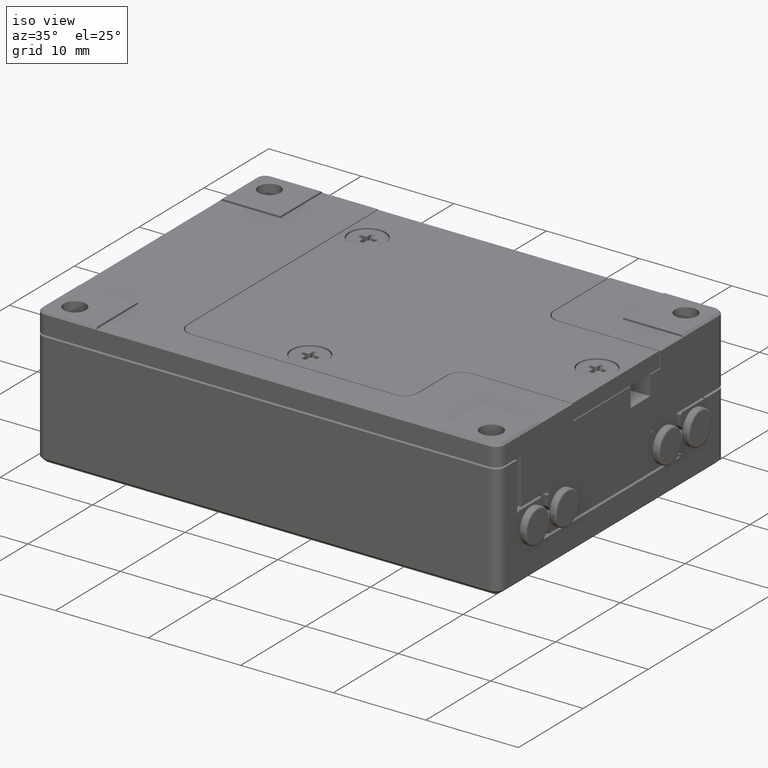
[diagram: clean part render]
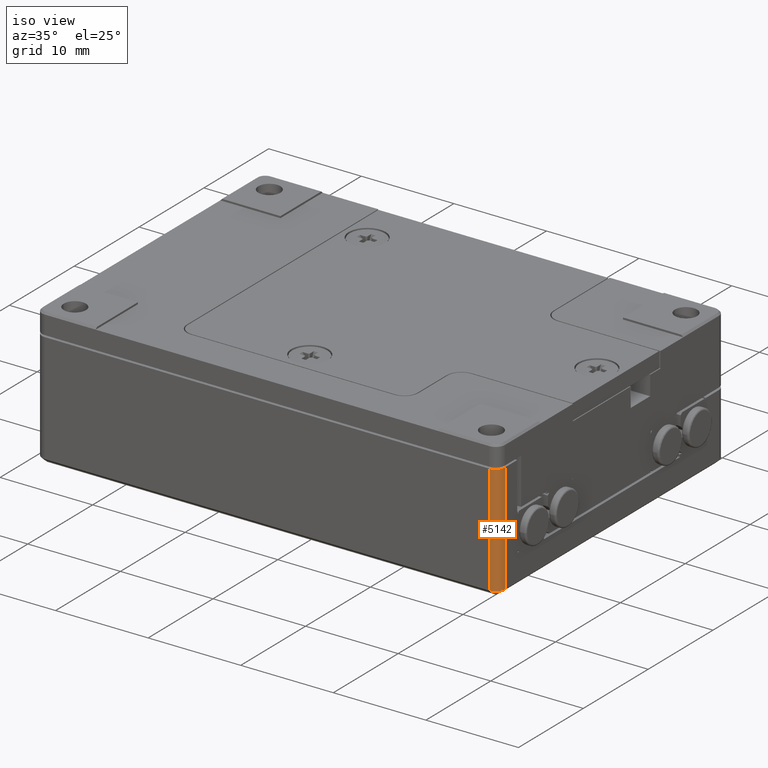
[diagram: same view with one face highlighted and labeled with its STEP entity id]
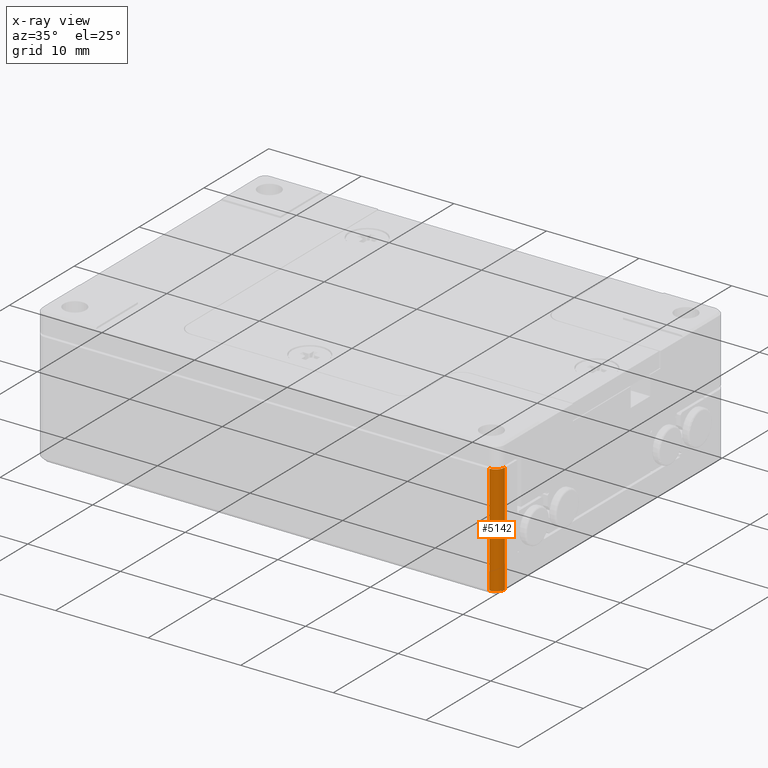
[diagram: x-ray of the same camera — body ghosted, the highlighted face saturated]
A machine part, iso view. The second image highlights one B-rep face of the part: STEP entity #5142.
The next image is the same camera in x-ray: the body ghosted, the highlighted face saturated — about 0% of this face is hidden behind the body in this view.
In plain terms, the highlighted cylindrical surface (edge-blend (fillet) strip) has radius 1 mm, axis along (-0, -0, 1).
Its self-contained STEP definition (entity closure, byte-faithful):
#118 = CARTESIAN_POINT ( 'NONE',  ( 22.62210796915164934, -9.299999999999998934, -12.81748071979434123 ) ) ;
#257 = CIRCLE ( 'NONE', #5820, 1.000000000000000888 ) ;
#642 = DIRECTION ( 'NONE',  ( 0.000000000000000000, 0.000000000000000000, -1.000000000000000000 ) ) ;
#1003 = CARTESIAN_POINT ( 'NONE',  ( 21.62210796915164934, 2.600000000000000089, -13.81748071979434123 ) ) ;
#2302 = AXIS2_PLACEMENT_3D ( 'NONE', #2814, #6345, #642 ) ;
#2409 = DIRECTION ( 'NONE',  ( 0.000000000000000000, -1.000000000000000000, 0.000000000000000000 ) ) ;
#2814 = CARTESIAN_POINT ( 'NONE',  ( 21.62210796915164934, 2.899999999999999911, -12.81748071979434123 ) ) ;
#3135 = CYLINDRICAL_SURFACE ( 'NONE', #2302, 1.000000000000000888 ) ;
#3335 = VECTOR ( 'NONE', #13438, 1000.000000000000000 ) ;
#3489 = ORIENTED_EDGE ( 'NONE', *, *, #7964, .F. ) ;
#3660 = LINE ( 'NONE', #3726, #6342 ) ;
#3726 = CARTESIAN_POINT ( 'NONE',  ( 21.62210796915164934, 2.899999999999999911, -13.81748071979434123 ) ) ;
#4701 = VERTEX_POINT ( 'NONE', #1003 ) ;
#5142 = ADVANCED_FACE ( 'NONE', ( #9053 ), #3135, .T. ) ;
#5366 = EDGE_LOOP ( 'NONE', ( #13182, #9064, #3489, #9860 ) ) ;
#5737 = VERTEX_POINT ( 'NONE', #118 ) ;
#5820 = AXIS2_PLACEMENT_3D ( 'NONE', #12831, #2409, #12763 ) ;
#6089 = CARTESIAN_POINT ( 'NONE',  ( 21.62210796915164934, -9.299999999999998934, -13.81748071979434123 ) ) ;
#6342 = VECTOR ( 'NONE', #7889, 1000.000000000000000 ) ;
#6345 = DIRECTION ( 'NONE',  ( 0.000000000000000000, -1.000000000000000000, 0.000000000000000000 ) ) ;
#6481 = CARTESIAN_POINT ( 'NONE',  ( 21.62210796915164934, -9.299999999999998934, -12.81748071979434123 ) ) ;
#6550 = VERTEX_POINT ( 'NONE', #6089 ) ;
#7030 = EDGE_CURVE ( 'NONE', #6550, #5737, #12615, .T. ) ;
#7889 = DIRECTION ( 'NONE',  ( 0.000000000000000000, -1.000000000000000000, 0.000000000000000000 ) ) ;
#7964 = EDGE_CURVE ( 'NONE', #5737, #13707, #11347, .T. ) ;
#9053 = FACE_OUTER_BOUND ( 'NONE', #5366, .T. ) ;
#9064 = ORIENTED_EDGE ( 'NONE', *, *, #12386, .T. ) ;
#9417 = EDGE_CURVE ( 'NONE', #4701, #6550, #3660, .T. ) ;
#9459 = DIRECTION ( 'NONE',  ( 0.000000000000000000, 0.000000000000000000, -1.000000000000000000 ) ) ;
#9860 = ORIENTED_EDGE ( 'NONE', *, *, #7030, .F. ) ;
#11057 = AXIS2_PLACEMENT_3D ( 'NONE', #6481, #12649, #9459 ) ;
#11290 = CARTESIAN_POINT ( 'NONE',  ( 22.62210796915164934, 2.600000000000000089, -12.81748071979434123 ) ) ;
#11347 = LINE ( 'NONE', #12328, #3335 ) ;
#12328 = CARTESIAN_POINT ( 'NONE',  ( 22.62210796915164934, 2.899999999999999911, -12.81748071979434123 ) ) ;
#12386 = EDGE_CURVE ( 'NONE', #4701, #13707, #257, .T. ) ;
#12615 = CIRCLE ( 'NONE', #11057, 1.000000000000000888 ) ;
#12649 = DIRECTION ( 'NONE',  ( 0.000000000000000000, -1.000000000000000000, 0.000000000000000000 ) ) ;
#12763 = DIRECTION ( 'NONE',  ( 0.000000000000000000, 0.000000000000000000, 1.000000000000000000 ) ) ;
#12831 = CARTESIAN_POINT ( 'NONE',  ( 21.62210796915164934, 2.600000000000000089, -12.81748071979434123 ) ) ;
#13182 = ORIENTED_EDGE ( 'NONE', *, *, #9417, .F. ) ;
#13438 = DIRECTION ( 'NONE',  ( 0.000000000000000000, 1.000000000000000000, 0.000000000000000000 ) ) ;
#13707 = VERTEX_POINT ( 'NONE', #11290 ) ;